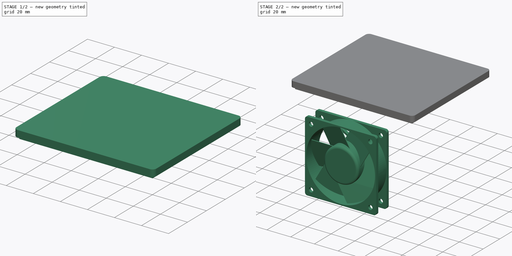
[diagram: build sequence overview — one tinted view per stage of 2, left to right]
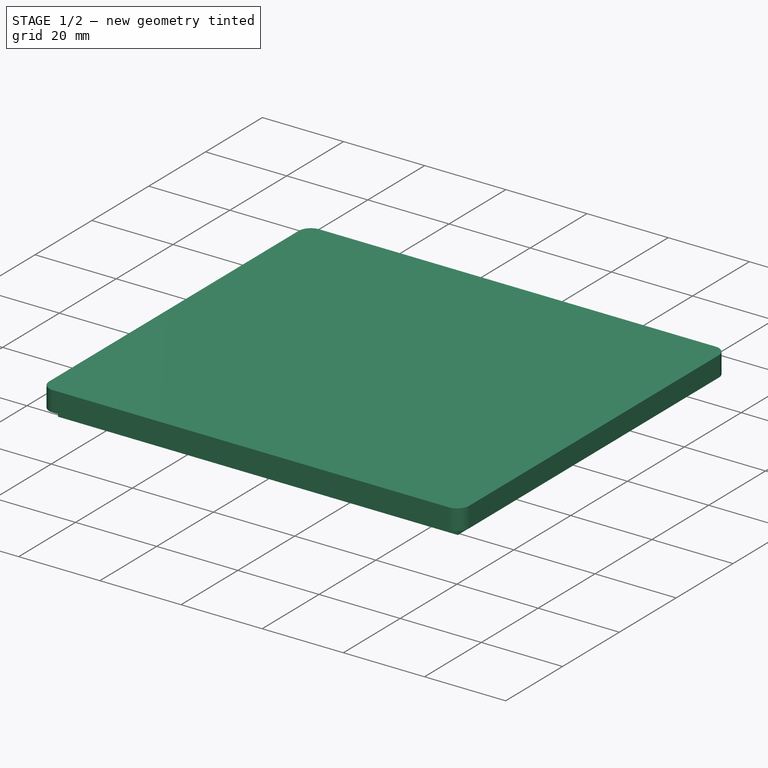
[diagram: stage 1 of 2 — iso view after this stage's code; geometry added in this stage tinted green]
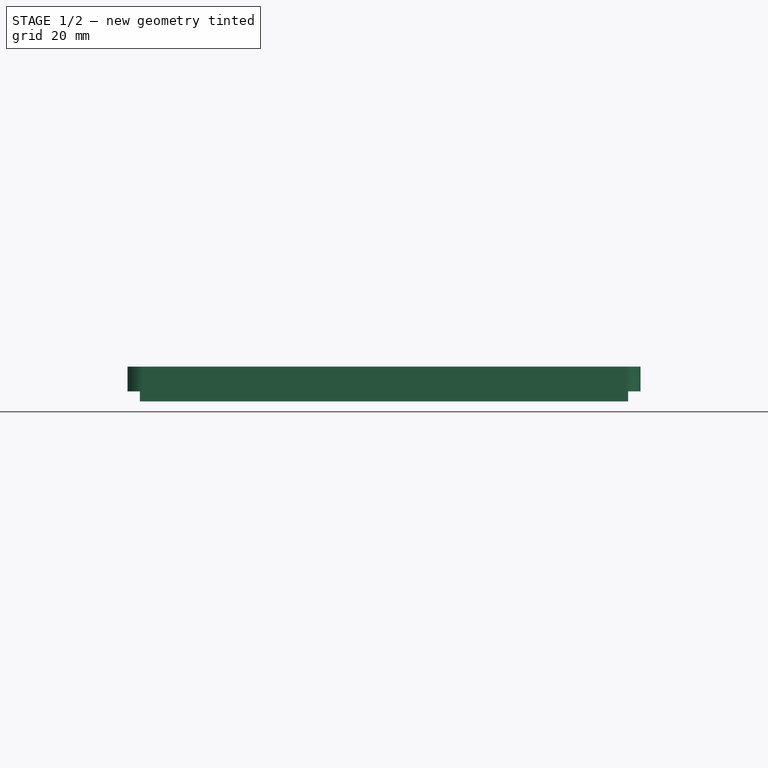
[diagram: stage 1 of 2 — front view after this stage's code; geometry added in this stage tinted green]
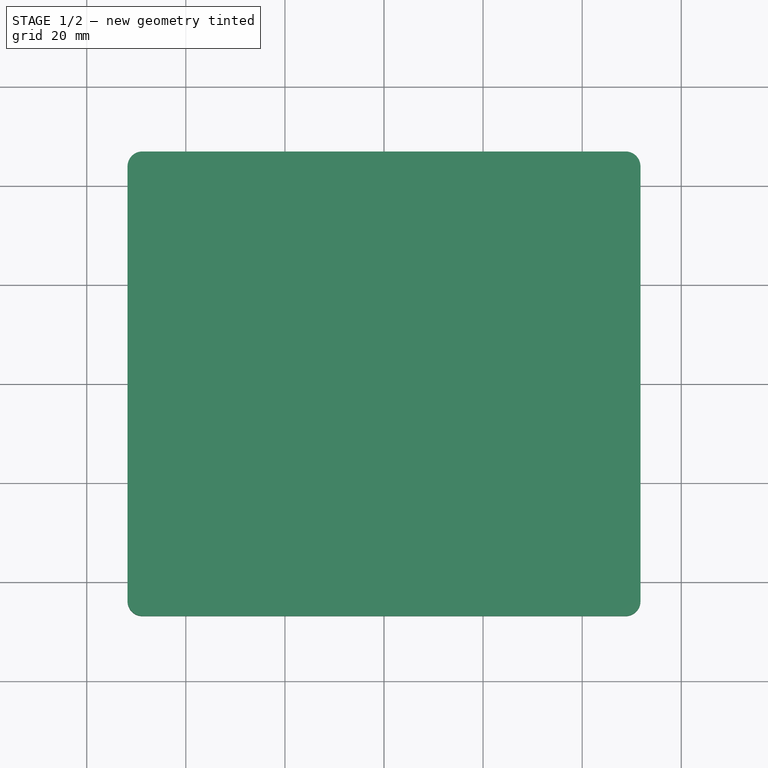
[diagram: stage 1 of 2 — top view after this stage's code; geometry added in this stage tinted green]
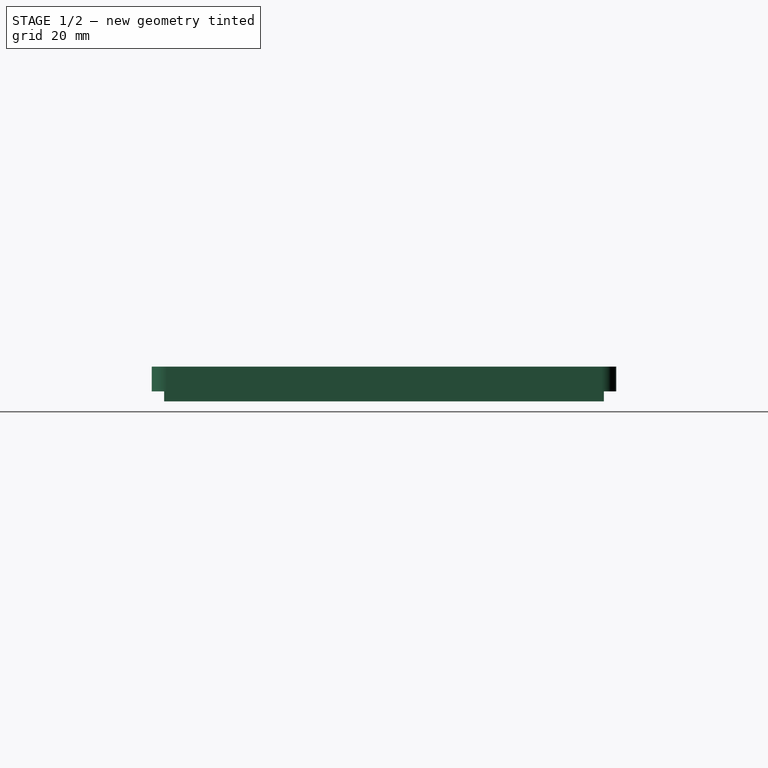
[diagram: stage 1 of 2 — right view after this stage's code; geometry added in this stage tinted green]
FCSTD DOCUMENT  (FreeCAD 0.19R24291 (Git))
Label: enclosure-inverter-1kw
License: All rights reserved
LicenseURL: http://en.wikipedia.org/wiki/All_rights_reserved
objects: PartDesign::Body×3, PartDesign::ShapeBinder×2, PartDesign::Pad×2, Sketcher::SketchObject×2, Spreadsheet::Sheet×1, Part::FeaturePython×1, App::Part×1, PartDesign::Plane×1
note: 13 computed .brp shape members not serialized (recipe doc carries the construction recipe); baked Part::Feature solids carry a one-line shape summary decoded from their .brp

FEATURE [App::Part] Part001  label="FanCasePart"
  Origin = -> Origin002
FEATURE [PartDesign::Plane] DatumPlane002
  Length = 123.236
  Placement = pos=(0,0,76) rot=(0,0,1;0rad)
  ResizeMode = 0
  Support = -> [Z_Axis003,Origin003]
  Width = 113.476
FEATURE [PartDesign::ShapeBinder] ShapeBinder002  label="TopLidInnerPathShapeBuilder"
  TraceSupport = false
FEATURE [PartDesign::Pad] Pad002  label="TopLidInnerPad"
  Direction = (1,1,1)
  Length = 2
  Length2 = 100
  Profile = -> ShapeBinder002
  Refine = true
  Type = 0
FEATURE [PartDesign::ShapeBinder] ShapeBinder003  label="TopLidOuterPathShapeBıuilder"
  TraceSupport = false
FEATURE [PartDesign::Pad] Pad003  label="TopLidOuterPad"
  BaseFeature = -> Pad002
  Direction = (1,1,1)
  Length = 5
  Length2 = 100
  Profile = -> ShapeBinder003
  Refine = true
  Reversed = true
  Type = 0
FEATURE [Sketcher::SketchObject] Sketch009
  FullyConstrained = true
  MapMode = 5
  Placement = pos=(0,0,76) rot=(0,0,1;0rad)
  Support = -> [Pad002]
  sketch-geometry (4):
    g0: Circle CenterX=-44.06 CenterY=39.11 CenterZ=0 NormalX=0 NormalY=0 NormalZ=1 AngleXU=0 Radius=1.4
    g1: Circle CenterX=43.53 CenterY=39.12 CenterZ=0 NormalX=0 NormalY=0 NormalZ=1 AngleXU=0 Radius=1.4
    g2: Circle CenterX=43.53 CenterY=-38.85 CenterZ=0 NormalX=0 NormalY=0 NormalZ=1 AngleXU=0 Radius=1.4
    g3: Circle CenterX=-44.07 CenterY=-38.84 CenterZ=0 NormalX=0 NormalY=0 NormalZ=1 AngleXU=0 Radius=1.4
  constraints (12):
    c: Diameter(g0) = 2.8
    c: Equal(g0,g1)
    c: Equal(g1,g2)
    c: Equal(g2,g3)
    c: DistanceY(g-1,g0) = 39.11
    c: DistanceX(g0,g-1) = 44.06
    c: DistanceX(g-1,g1) = 43.53
    c: DistanceY(g-1,g1) = 39.12
    c: DistanceY(g2,g-1) = 38.85
    c: DistanceX(g-1,g2) = 43.53
    c: DistanceX(g3,g-1) = 44.07
    c: DistanceY(g3,g-1) = 38.84
FEATURE [PartDesign::Body] Body001  label="BodyLid"
  Group = -> [DatumPlane002,ShapeBinder002,Pad002,ShapeBinder003,Pad003,Sketch009]
  Origin = -> Origin003
  Tip = -> Pad003
FEATURE [PartDesign::Body] Body002  label="BodyFan"
  Origin = -> Origin004
FEATURE [Sketcher::SketchObject] Sketch  label="BottomSurfaceSketch"
  FullyConstrained = false
  MapMode = 5
  Support = -> [XY_Plane]
  sketch-geometry (4):
    g0: LineSegment StartX=-33.8553 StartY=20.7322 StartZ=0 EndX=54.7721 EndY=20.7322 EndZ=0
    g1: LineSegment StartX=54.7721 StartY=20.7322 StartZ=0 EndX=54.7721 EndY=-20.9528 EndZ=0
    g2: LineSegment StartX=54.7721 StartY=-20.9528 StartZ=0 EndX=-33.8553 EndY=-20.9528 EndZ=0
    g3: LineSegment StartX=-33.8553 StartY=-20.9528 StartZ=0 EndX=-33.8553 EndY=20.7322 EndZ=0
  constraints (8):
    c: Coincident(g0,g1)
    c: Coincident(g1,g2)
    c: Coincident(g2,g3)
    c: Coincident(g3,g0)
    c: Horizontal(g0)
    c: Horizontal(g2)
    c: Vertical(g1)
    c: Vertical(g3)
FEATURE [PartDesign::Body] Body  label="BodyEnclosure"
  Group = -> [Sketch]
  Origin = -> Origin
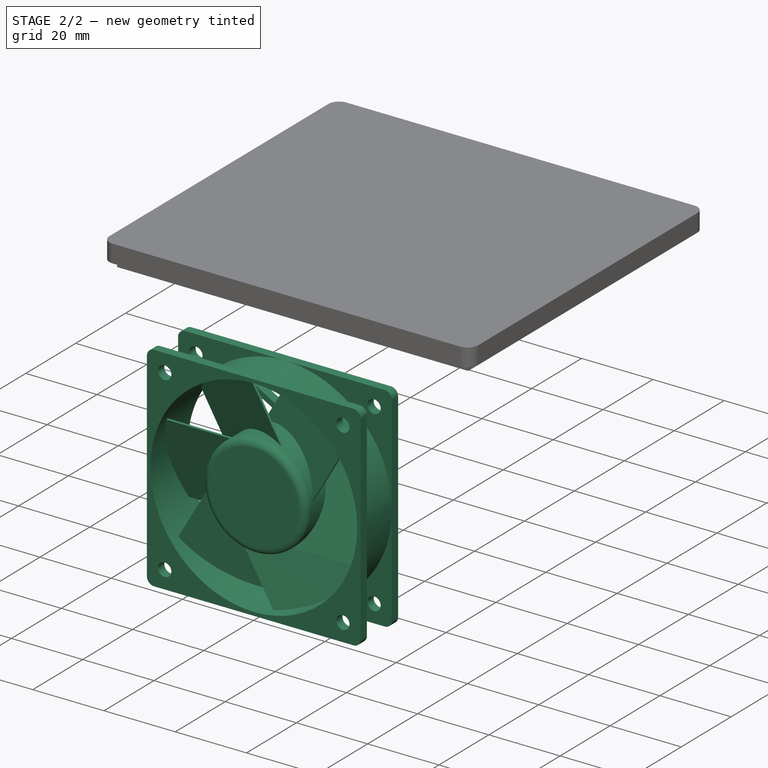
[diagram: stage 2 of 2 — iso view after this stage's code; geometry added in this stage tinted green]
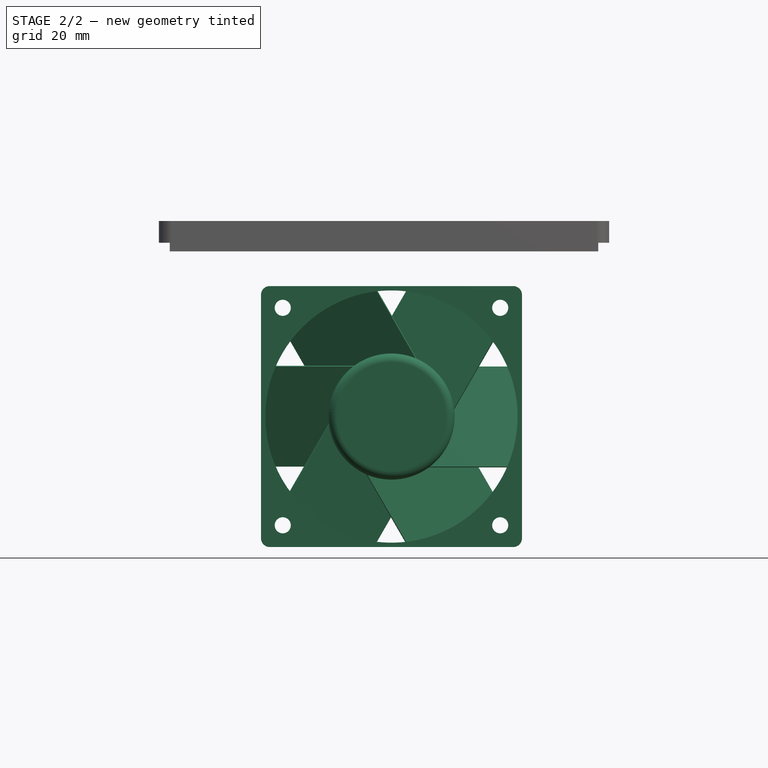
[diagram: stage 2 of 2 — front view after this stage's code; geometry added in this stage tinted green]
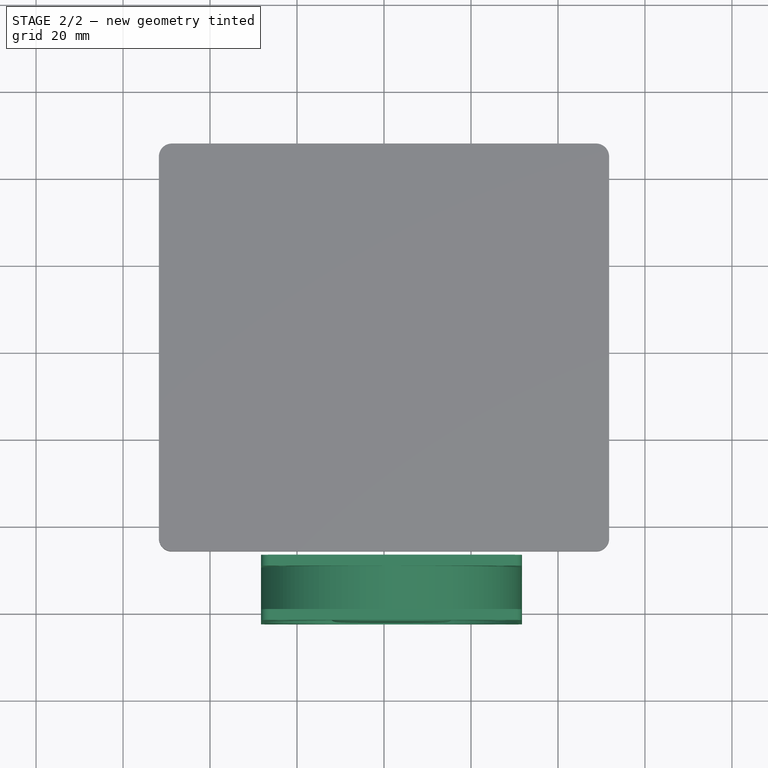
[diagram: stage 2 of 2 — top view after this stage's code; geometry added in this stage tinted green]
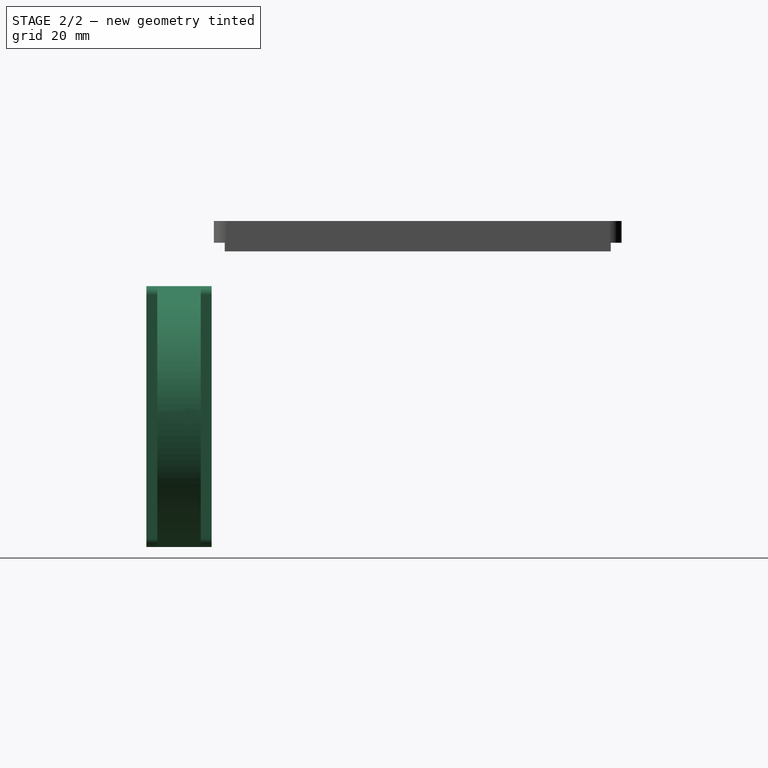
[diagram: stage 2 of 2 — right view after this stage's code; geometry added in this stage tinted green]
FEATURE [Spreadsheet::Sheet] Spreadsheet
  cells = A1=Version; B1=1.0.1; B3=Inputs; E3=Calculations; A4=PCB.Lenght; B4(PCBLenght)=96.53; D4=Enclosure.Lenght; E4(EnclosureLenght)==B4 + B8 + B12; A5=PCB.Width; B5(PCBWidth)=86.77; D5=Enclosure.Width; E5(EnclosureWidth)==B5 + B9 + B13; A6=PCB.Height; B6(PCBHeight)=70; D6=Enclosure.Height; E6(EnclosureHeight)==B6 + B10 + B14 + B15; A8=PCB.Lenght.Tolerans; B8(PCBLenghtTolerans)=2; A9=PCB.Width.Tolerans; B9(PCBWidthTolerans)=2; A10=PCB.Height.Tolerans; B10(PCBHeightTolerans)=2; A12=Enclosure.Lenght.Offset; B12(EnclosureLenghtOffset)=5; A13=Enclosure.Width.Offset; B13(EnclosureWidthOffset)=5; A14=Enclousre.Height.Offset; B14(EnclosureHeightOffset)=4; A15=Enclosure.Base.Thickness; B15(EnclosureBaseThickness)=2; B17=Hole Positions; A18=Hole.Inner; B18(HoleInner)=2.8; A19=Hole.Bot.Left.Outer; B19(HoleOuter)=5.34; A20=Hole.Bot.Left.X; B20(HoleBotLeftX)=4.2; A21=Hole.Bot.Left.Y; B21(HoleBotLeftY)=4.54; A22=Hole.Bot.Rİght.X; B22(HoleBotRightX)=91.8; A23=Hole.Bot.Right.Y; B23(HoleBotRightY)==B21; C23=Depend; A24=Hole.Top.Left.X; B24(HoleTopLeftX)==B20; C24=Depend; A25=Hole.Top.Left.Y; B25(HoleTopLeftY)=82.5; A26=Hole.Top.Right.X; B26(HoleTopRightX)==B22; C26=Depend; A27=Hole.Top.Right.Y; B27(HoleTopRightY)==B25; C27=Depend; B29=Fan Size; A30=Fan Legth; B30(FanLenght)=60; A31=Fan Heigth; B31(FanHeight)=60; A32=Fan Width; B32(FanWidth)=15; A34=Fan Length Tolerans; B34(FanLenghtTolerans)=4; A35=Fan Height Tolerans; B35(FanHeightTolerans)=4; A36=Fan Width Tolerans; B36(FanWidthTolerans)=6
FEATURE [Part::FeaturePython] _12f_2l_640_001  label="612f_2l-640_001"  # a2plus imported part (geometry in sourceFile) (typed FeaturePython)
  Placement = pos=(1.72107,-47.4024,36.0301) rot=(1,0,0;1.5708rad)
  a2p_Version = V0.1
  fixedPosition = false
  localSourceObject = Part__Feature
  objectType = a2pPart
  sourceFile = converted
  subassemblyImport = false
  timeLastImport = 1.62905e+09
  updateColors = true
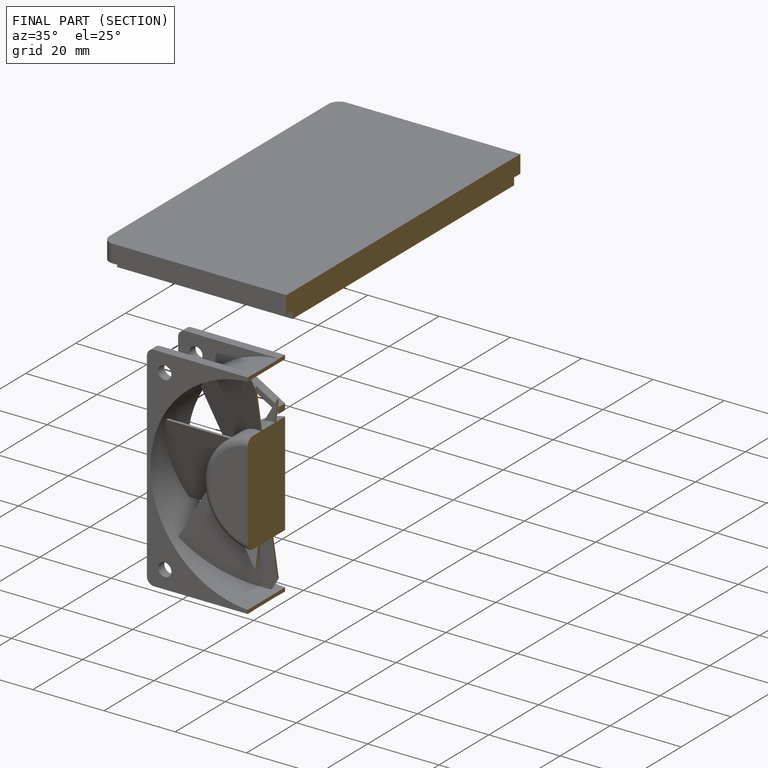
[diagram: finished part — half-section view (interior)]
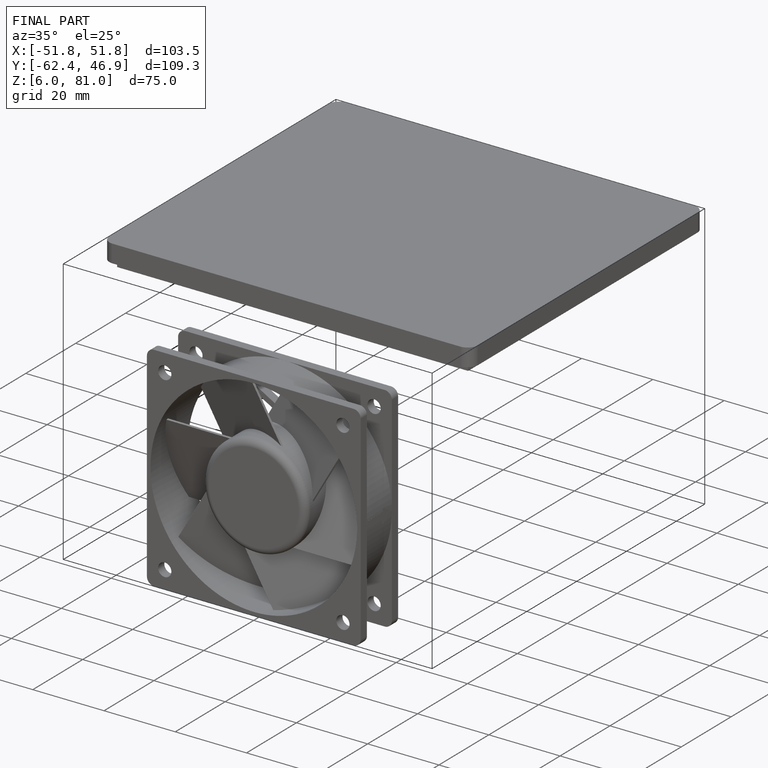
[diagram: finished part — iso view with bounding-box wireframe]
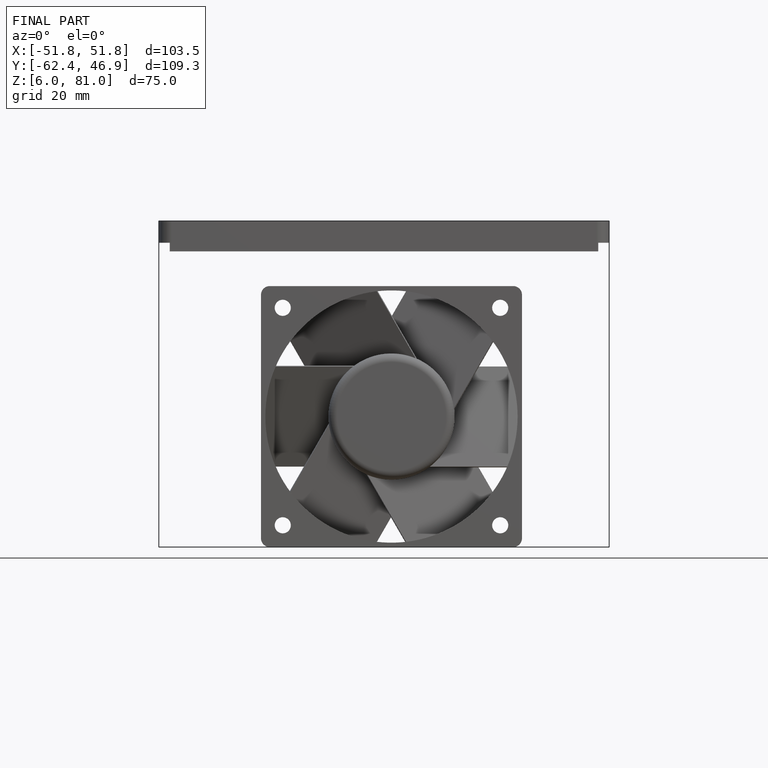
[diagram: finished part — front view with bounding-box wireframe]
